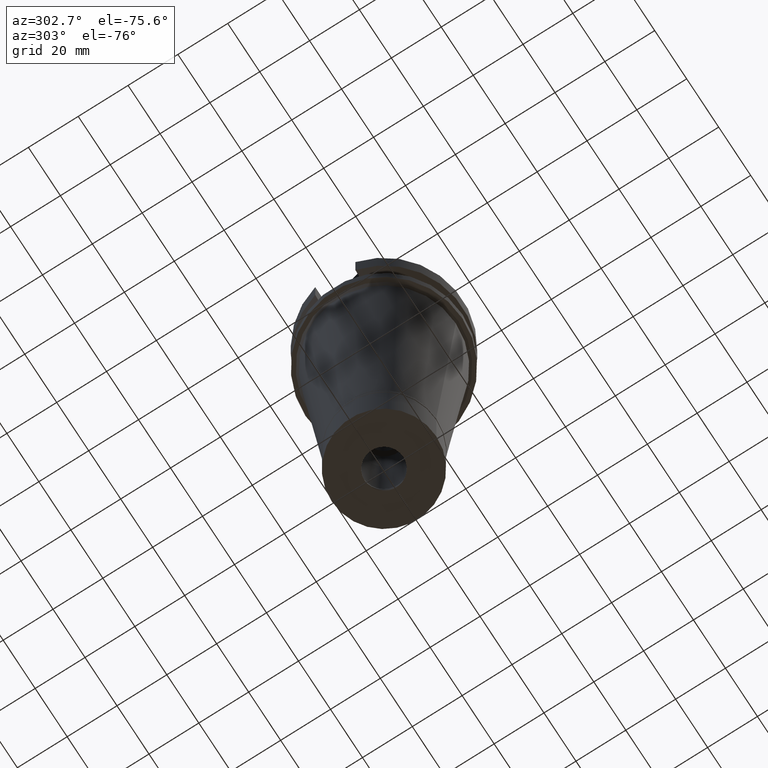
[diagram: clean part render]
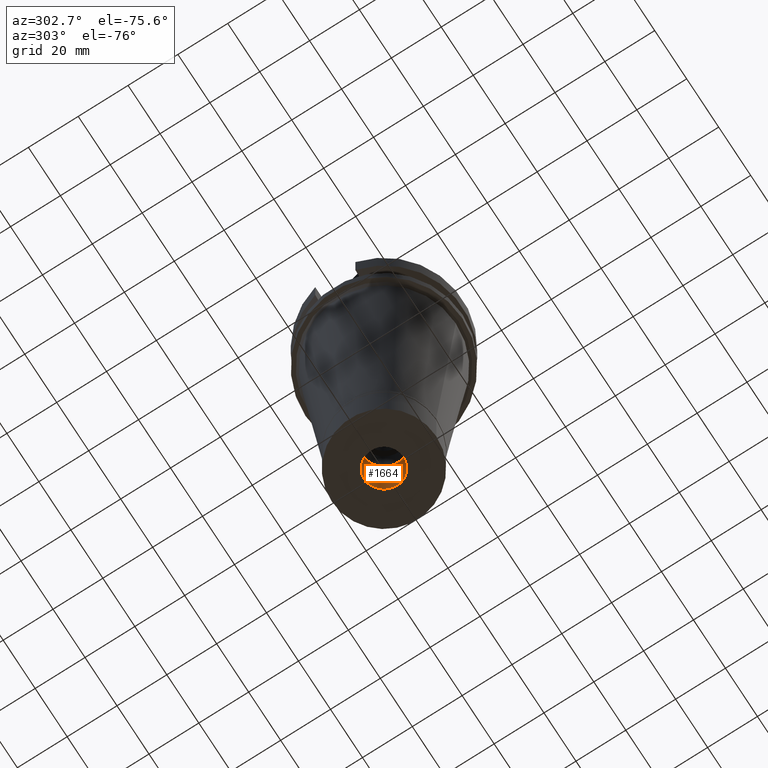
[diagram: same view with one face highlighted and labeled with its STEP entity id]
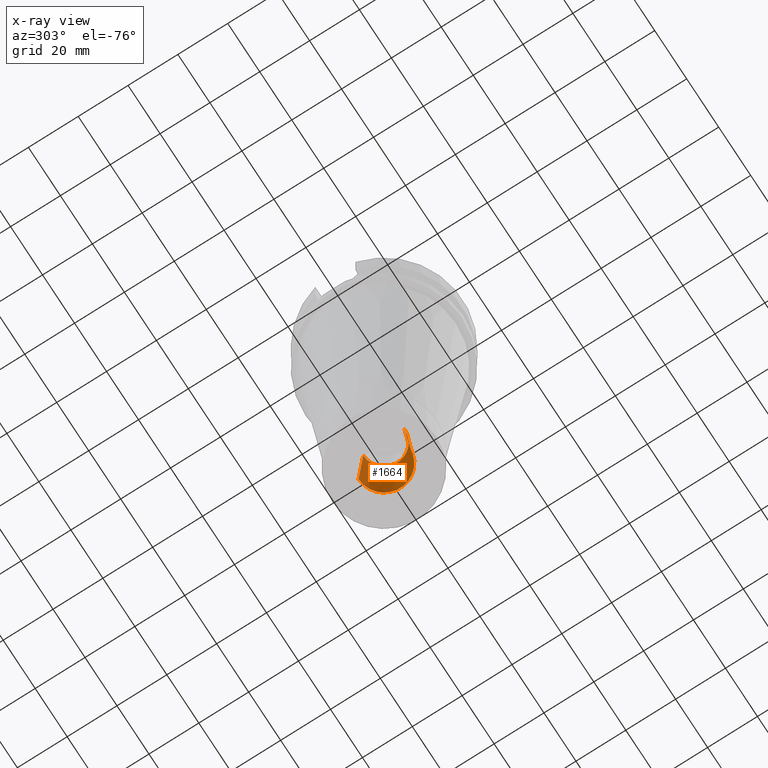
[diagram: x-ray of the same camera — body ghosted, the highlighted face saturated]
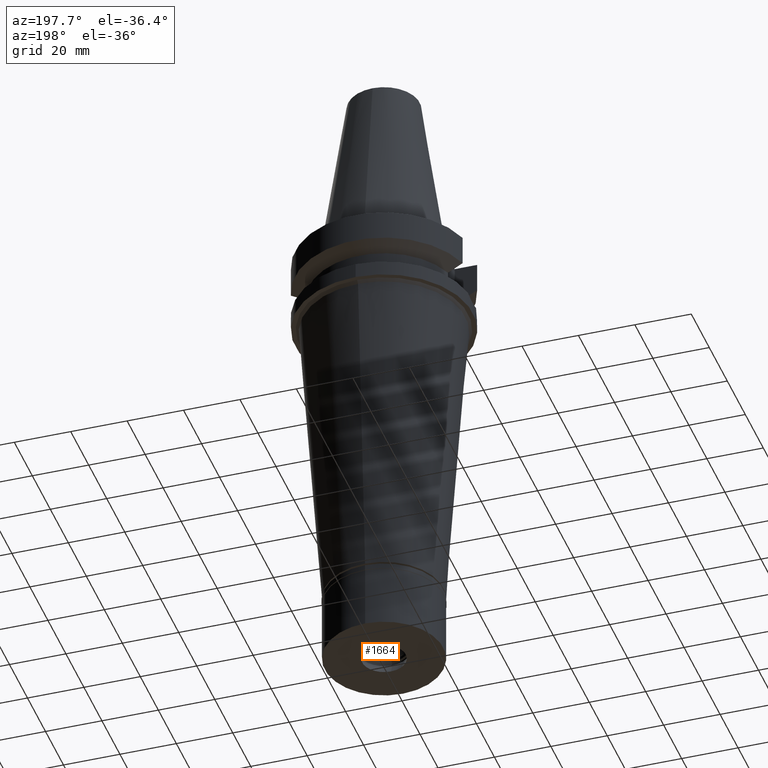
[diagram: same view with one face highlighted and labeled with its STEP entity id]
A machine part, auxiliary view. The second image highlights one B-rep face of the part: STEP entity #1664.
The next image is the same camera in x-ray: the body ghosted, the highlighted face saturated — about 3% of this face is hidden behind the body in this view.
A second angle (auxiliary view) of the same face is appended — the face is thin or edge-on in the first view.
In plain terms, the highlighted conical surface has half-angle 4 deg.
Its self-contained STEP definition (entity closure, byte-faithful):
#38 = DIRECTION ( 'NONE',  ( 0.0000000000000000000, 0.0000000000000000000, -1.000000000000000000 ) ) ;
#51 = CARTESIAN_POINT ( 'NONE',  ( 0.0000000000000000000, 0.0000000000000000000, -143.5568503997000107 ) ) ;
#60 = VECTOR ( 'NONE', #2178, 1000.000000000000114 ) ;
#140 = CARTESIAN_POINT ( 'NONE',  ( 0.0000000000000000000, 0.0000000000000000000, -129.6137007993999930 ) ) ;
#153 = DIRECTION ( 'NONE',  ( 0.0000000000000000000, 1.000000000000000000, 0.0000000000000000000 ) ) ;
#264 = AXIS2_PLACEMENT_3D ( 'NONE', #140, #1127, #153 ) ;
#429 = ORIENTED_EDGE ( 'NONE', *, *, #2716, .F. ) ;
#560 = EDGE_CURVE ( 'NONE', #569, #1451, #1874, .T. ) ;
#569 = VERTEX_POINT ( 'NONE', #718 ) ;
#716 = CARTESIAN_POINT ( 'NONE',  ( 0.0000000000000000000, 0.0000000000000000000, -157.5000000000000000 ) ) ;
#718 = CARTESIAN_POINT ( 'NONE',  ( 0.0000000000000000000, -10.25000000000000000, -157.5000000000000000 ) ) ;
#819 = CONICAL_SURFACE ( 'NONE', #1934, 9.275000000000000355, 0.06981317007975955391 ) ;
#935 = CIRCLE ( 'NONE', #2697, 10.25000000000000000 ) ;
#947 = LINE ( 'NONE', #1206, #60 ) ;
#976 = DIRECTION ( 'NONE',  ( 0.0000000000000000000, 1.000000000000000000, 0.0000000000000000000 ) ) ;
#1127 = DIRECTION ( 'NONE',  ( 0.0000000000000000000, 0.0000000000000000000, -1.000000000000000000 ) ) ;
#1183 = DIRECTION ( 'NONE',  ( 0.0000000000000000000, 0.06975647374411181323, 0.9975640502598251969 ) ) ;
#1206 = CARTESIAN_POINT ( 'NONE',  ( 0.0000000000000000000, 10.25000000000000000, -157.5000000000000000 ) ) ;
#1451 = VERTEX_POINT ( 'NONE', #2784 ) ;
#1500 = VERTEX_POINT ( 'NONE', #3110 ) ;
#1506 = VERTEX_POINT ( 'NONE', #1672 ) ;
#1664 = ADVANCED_FACE ( 'NONE', ( #2481 ), #819, .F. ) ;
#1672 = CARTESIAN_POINT ( 'NONE',  ( 0.0000000000000000000, 10.25000000000000000, -157.5000000000000000 ) ) ;
#1874 = LINE ( 'NONE', #2650, #2236 ) ;
#1934 = AXIS2_PLACEMENT_3D ( 'NONE', #51, #38, #2233 ) ;
#2002 = ORIENTED_EDGE ( 'NONE', *, *, #3131, .F. ) ;
#2130 = ORIENTED_EDGE ( 'NONE', *, *, #560, .T. ) ;
#2178 = DIRECTION ( 'NONE',  ( 0.0000000000000000000, -0.06975647374411181323, 0.9975640502598251969 ) ) ;
#2233 = DIRECTION ( 'NONE',  ( 0.0000000000000000000, -1.000000000000000000, 0.0000000000000000000 ) ) ;
#2236 = VECTOR ( 'NONE', #1183, 1000.000000000000114 ) ;
#2325 = ORIENTED_EDGE ( 'NONE', *, *, #3013, .T. ) ;
#2407 = CIRCLE ( 'NONE', #264, 8.300000000000000711 ) ;
#2418 = DIRECTION ( 'NONE',  ( 0.0000000000000000000, 0.0000000000000000000, -1.000000000000000000 ) ) ;
#2481 = FACE_OUTER_BOUND ( 'NONE', #2486, .T. ) ;
#2486 = EDGE_LOOP ( 'NONE', ( #2325, #2130, #2002, #429 ) ) ;
#2650 = CARTESIAN_POINT ( 'NONE',  ( 0.0000000000000000000, -10.25000000000000000, -157.5000000000000000 ) ) ;
#2697 = AXIS2_PLACEMENT_3D ( 'NONE', #716, #2418, #976 ) ;
#2716 = EDGE_CURVE ( 'NONE', #1506, #1500, #947, .T. ) ;
#2784 = CARTESIAN_POINT ( 'NONE',  ( 0.0000000000000000000, -8.300000000000000711, -129.6137007993999930 ) ) ;
#3013 = EDGE_CURVE ( 'NONE', #1506, #569, #935, .T. ) ;
#3110 = CARTESIAN_POINT ( 'NONE',  ( 0.0000000000000000000, 8.300000000000000711, -129.6137007993999930 ) ) ;
#3131 = EDGE_CURVE ( 'NONE', #1500, #1451, #2407, .T. ) ;